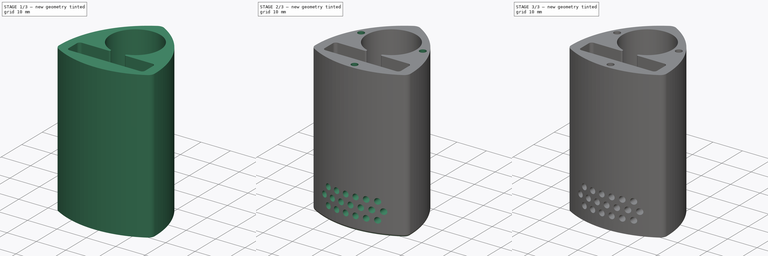
[diagram: build sequence overview — one tinted view per stage of 3, left to right]
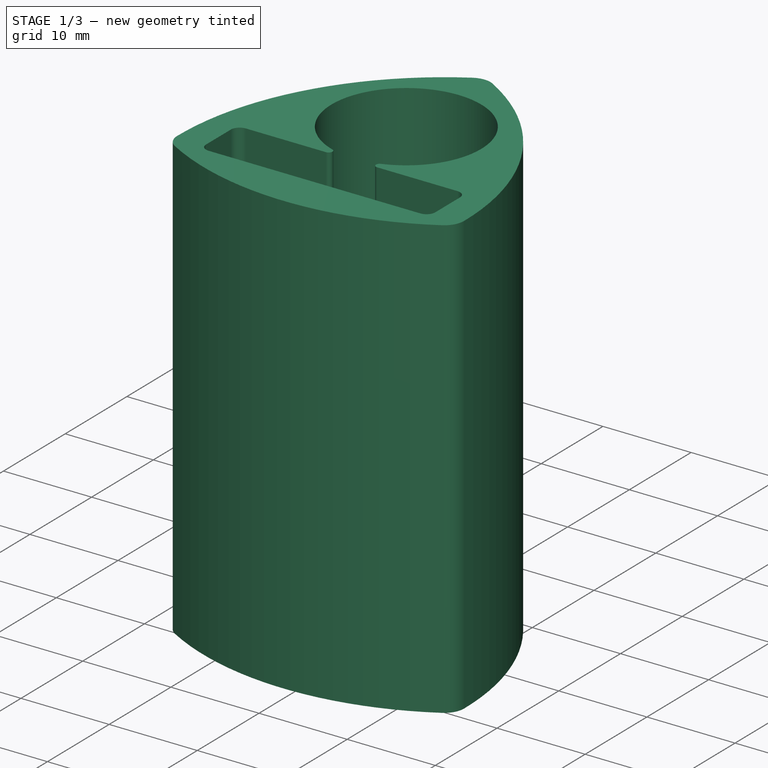
[diagram: stage 1 of 3 — iso view after this stage's code; geometry added in this stage tinted green]
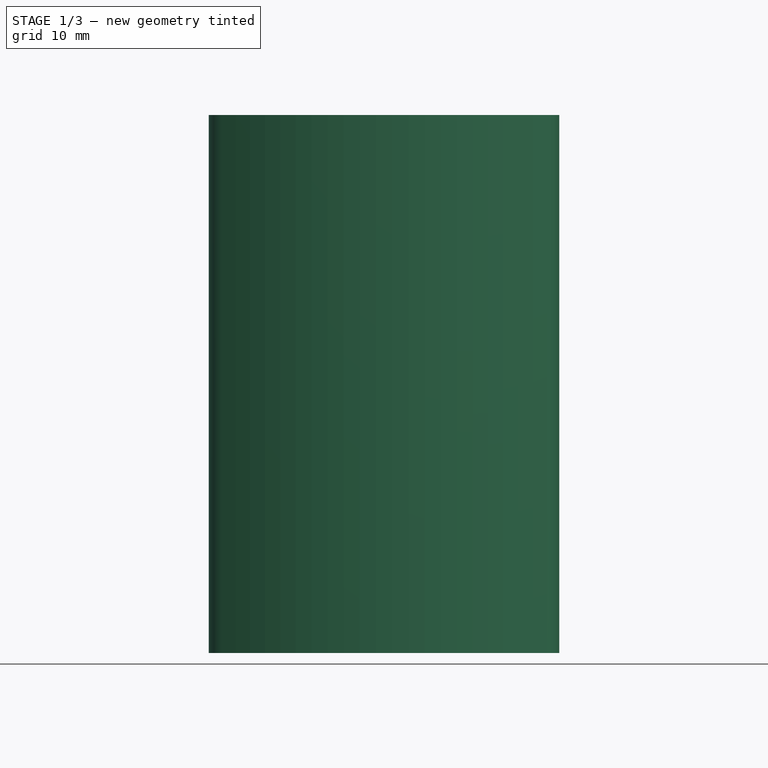
[diagram: stage 1 of 3 — front view after this stage's code; geometry added in this stage tinted green]
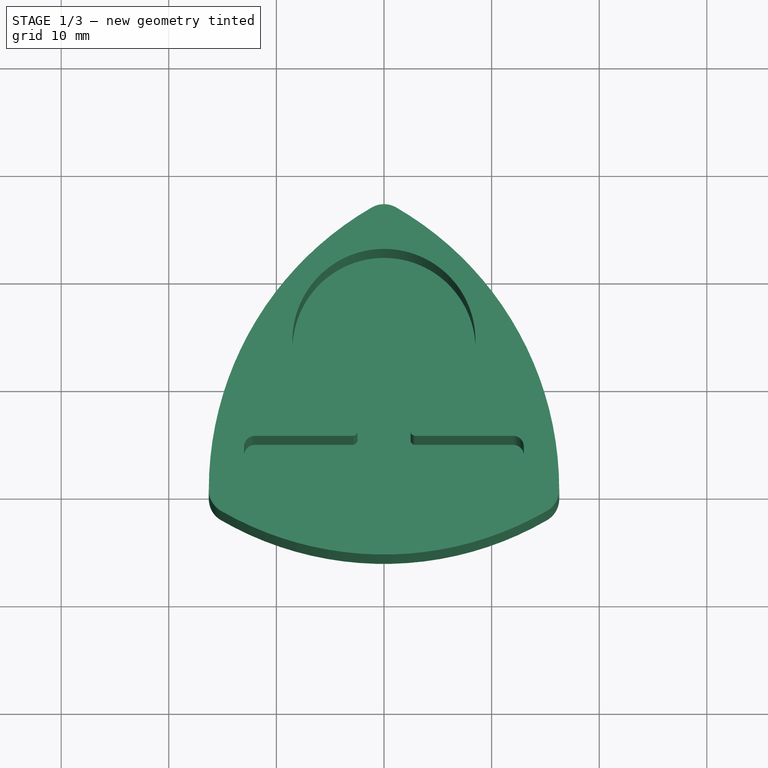
[diagram: stage 1 of 3 — top view after this stage's code; geometry added in this stage tinted green]
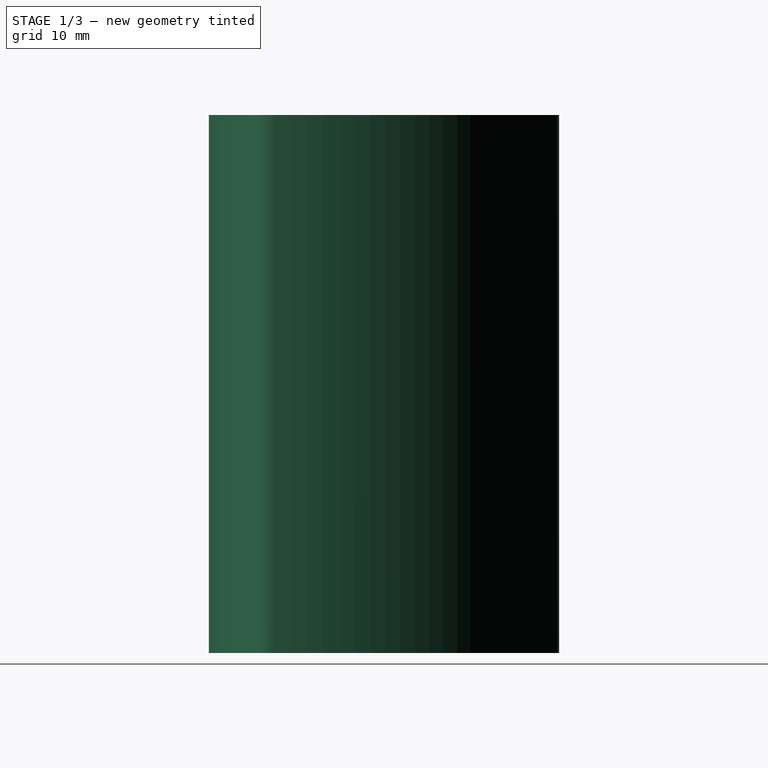
[diagram: stage 1 of 3 — right view after this stage's code; geometry added in this stage tinted green]
FCSTD DOCUMENT  (FreeCAD 1.0R39109 (Git))
Label: housing
License: All rights reserved
LicenseURL: https://en.wikipedia.org/wiki/All_rights_reserved
objects: Sketcher::SketchObject×6, PartDesign::Pocket×4, PartDesign::Pad×2, PartDesign::Body×2, PartDesign::Fillet×1
note: 35 computed .brp shape members not serialized (recipe doc carries the construction recipe); baked Part::Feature solids carry a one-line shape summary decoded from their .brp

FEATURE [Sketcher::SketchObject] Sketch002  label="Base form"
  ArcFitTolerance = 1e-06
  FullyConstrained = false
  MakeInternals = false
  MapMode = 5
  sketch-geometry (9):
    g0: ArcOfCircle CenterX=14 CenterY=0 CenterZ=0 NormalX=0 NormalY=0 NormalZ=1 AngleXU=0 Radius=30.2821 StartAngle=2.0944 EndAngle=3.14159
    g1: ArcOfCircle CenterX=5.3e-15 CenterY=24.2487 CenterZ=0 NormalX=0 NormalY=0 NormalZ=1 AngleXU=0 Radius=2.28206 StartAngle=1.0472 EndAngle=2.0944
    g2: ArcOfCircle CenterX=-14 CenterY=-1e-16 CenterZ=0 NormalX=0 NormalY=0 NormalZ=1 AngleXU=0 Radius=30.2821 StartAngle=0 EndAngle=1.0472
    g3: ArcOfCircle CenterX=14 CenterY=0 CenterZ=0 NormalX=0 NormalY=0 NormalZ=1 AngleXU=0 Radius=2.28206 StartAngle=5.23599 EndAngle=6.28319
    g4: ArcOfCircle CenterX=5.3e-15 CenterY=24.2487 CenterZ=0 NormalX=0 NormalY=0 NormalZ=1 AngleXU=0 Radius=30.2821 StartAngle=4.18879 EndAngle=5.23599
    g5: ArcOfCircle CenterX=-14 CenterY=1e-16 CenterZ=0 NormalX=0 NormalY=0 NormalZ=1 AngleXU=0 Radius=2.28206 StartAngle=3.14159 EndAngle=4.18879
    g6: LineSegment [constr] StartX=-14 StartY=-1e-16 StartZ=0 EndX=5.3e-15 EndY=24.2487 EndZ=0
    g7: LineSegment [constr] StartX=5.3e-15 StartY=24.2487 StartZ=0 EndX=14 EndY=0 EndZ=0
    g8: LineSegment [constr] StartX=14 StartY=0 StartZ=0 EndX=-14 EndY=-1e-16 EndZ=0
  constraints (21):
    c: Tangent(g1,g0) = -1.5708
    c: Tangent(g2,g1) = -1.5708
    c: Tangent(g3,g2) = -1.5708
    c: Tangent(g4,g3) = -1.5708
    c: Tangent(g5,g4) = -1.5708
    c: Tangent(g5,g0) = -1.5708
    c: Coincident(g0,g3)
    c: Coincident(g4,g1)
    c: Coincident(g6,g2)
    c: Coincident(g6,g1)
    c: Coincident(g7,g1)
    c: Coincident(g7,g0)
    c: Coincident(g8,g0)
    c: Coincident(g8,g2)
    c: Equal(g8,g7)
    c: Equal(g6,g7)
    c: PointOnObject(g-1,g8)
    c: PointOnObject(g1,g-2)
    c: DistanceX(g8,g8) = 28
    c: PointOnObject(g0,g-1)
    c: PointOnObject(g5,g-1)
FEATURE [PartDesign::Pad] Pad
  Direction = (0,0,1)
  Length = 50
  Length2 = 10
  Profile = -> Sketch002
  ReferenceAxis = -> Sketch002 [N_Axis]
  Refine = true
  Suppressed = false
  Type = 0
FEATURE [Sketcher::SketchObject] Sketch003  label="Pocket sketch"
  ArcFitTolerance = 1e-06
  AttachmentSupport = -> [Pad]
  FullyConstrained = false
  MakeInternals = false
  MapMode = 5
  Placement = pos=(0,0,50) rot=(0,0,1;0rad)
  sketch-geometry (22):
    g0: LineSegment StartX=-13 StartY=4 StartZ=0 EndX=-13 EndY=0 EndZ=0
    g1: LineSegment StartX=-12 StartY=-1 StartZ=0 EndX=12 EndY=-1 EndZ=0
    g2: LineSegment StartX=13 StartY=-2e-16 StartZ=0 EndX=13 EndY=4 EndZ=0
    g3: ArcOfCircle CenterX=-12 CenterY=4 CenterZ=0 NormalX=0 NormalY=0 NormalZ=1 AngleXU=0 Radius=1 StartAngle=1.5708 EndAngle=3.14159
    g4: ArcOfCircle CenterX=-12 CenterY=0 CenterZ=0 NormalX=0 NormalY=0 NormalZ=1 AngleXU=0 Radius=1 StartAngle=3.14159 EndAngle=4.71239
    g5: ArcOfCircle CenterX=12 CenterY=0 CenterZ=0 NormalX=0 NormalY=0 NormalZ=1 AngleXU=0 Radius=1 StartAngle=4.71239 EndAngle=6.28319
    g6: ArcOfCircle CenterX=12 CenterY=4 CenterZ=0 NormalX=0 NormalY=0 NormalZ=1 AngleXU=0 Radius=1 StartAngle=0 EndAngle=1.5708
    g7: GeomPoint [constr] X=-13 Y=5 Z=0
    g8: GeomPoint [constr] X=13 Y=-1 Z=0
    g9: LineSegment [constr] StartX=-13 StartY=0 StartZ=0 EndX=0 EndY=0 EndZ=0
    g10: LineSegment [constr] StartX=0 StartY=0 StartZ=0 EndX=13 EndY=-2e-16 EndZ=0
    g11: ArcOfCircle CenterX=0 CenterY=13.8745 CenterZ=0 NormalX=0 NormalY=0 NormalZ=1 AngleXU=0 Radius=8.5 StartAngle=5.04325 EndAngle=10.6647
    g12: LineSegment StartX=-12 StartY=5 StartZ=0 EndX=-2.9008 EndY=5 EndZ=0
    g13: LineSegment StartX=12 StartY=5 StartZ=0 EndX=2.9008 EndY=5 EndZ=0
    g14: ArcOfCircle CenterX=-2.9008 CenterY=5.42942 CenterZ=0 NormalX=0 NormalY=0 NormalZ=1 AngleXU=0 Radius=0.429423 StartAngle=4.71239 EndAngle=7.52312
    g15: ArcOfCircle CenterX=2.9008 CenterY=5.42942 CenterZ=0 NormalX=0 NormalY=0 NormalZ=1 AngleXU=0 Radius=0.429423 StartAngle=1.90166 EndAngle=4.71239
    g16: LineSegment [constr] StartX=-8.97601 StartY=-1 StartZ=0 EndX=-8.97601 EndY=5 EndZ=0
    g17: LineSegment [constr] StartX=-2.76129 StartY=5.83555 StartZ=0 EndX=0 EndY=5.83555 EndZ=0
    g18: LineSegment [constr] StartX=0 StartY=5.83555 StartZ=0 EndX=2.76129 EndY=5.83555 EndZ=0
    g19: LineSegment [constr] StartX=-2.9008 StartY=5 StartZ=0 EndX=0 EndY=5 EndZ=0
    g20: LineSegment [constr] StartX=0 StartY=5 StartZ=0 EndX=2.9008 EndY=5 EndZ=0
    g21: LineSegment [constr] StartX=0 StartY=13.8745 StartZ=0 EndX=7.74213 EndY=17.383 EndZ=0
  constraints (54):
    c: Tangent(g0,g3) = -1.5708
    c: Tangent(g0,g4) = -1.5708
    c: Tangent(g1,g4) = -1.5708
    c: Tangent(g1,g5) = -1.5708
    c: Tangent(g2,g5) = -1.5708
    c: Tangent(g2,g6) = -1.5708
    c: Vertical(g0)
    c: Vertical(g2)
    c: Horizontal(g1)
    c: Equal(g3,g4)
    c: Equal(g4,g5)
    c: Equal(g5,g6)
    c: PointOnObject(g7,g0)
    c: PointOnObject(g8,g1)
    c: PointOnObject(g8,g2)
    c: Distance(g0,g2) = 26
    c: Distance(g1,g3) = 6
    c: Radius(g4) = 1
    c: PointOnObject(g0,g-1)
    c: Coincident(g9,g0)
    c: Coincident(g9,g-1)
    c: Coincident(g10,g9)
    c: Coincident(g10,g2)
    c: Equal(g9,g10)
    c: PointOnObject(g11,g-2)
    c: Coincident(g12,g3)
    c: Horizontal(g12)
    c: Coincident(g13,g6)
    c: Horizontal(g13)
    c: Coincident(g14,g12)
    c: Coincident(g15,g13)
    c: Equal(g0,g2)
    c: Vertical(g16)
    c: PointOnObject(g16,g1)
    c: PointOnObject(g16,g12)
    c: Horizontal(g17)
    c: Coincident(g17,g11)
    c: PointOnObject(g17,g-2)
    c: Coincident(g18,g17)
    c: Coincident(g18,g11)
    c: Horizontal(g18)
    c: Horizontal(g19)
    c: Coincident(g19,g12)
    c: PointOnObject(g19,g-2)
    c: Coincident(g20,g19)
    c: Coincident(g20,g13)
    c: Horizontal(g20)
    c: Tangent(g20,g15)
    c: Equal(g19,g20)
    c: Tangent(g15,g11) = 1.5708
    c: Tangent(g14,g11) = 1.5708
    c: Coincident(g21,g11)
    c: PointOnObject(g21,g11)
    c: Distance(g21,g21) = 8.5
FEATURE [PartDesign::Pocket] Pocket
  BaseFeature = -> Pad
  Direction = (0,0,-1)
  Length = 48
  Length2 = 5
  Profile = -> Sketch003
  ReferenceAxis = -> Sketch003 [N_Axis]
  Refine = true
  Suppressed = false
  Type = 0
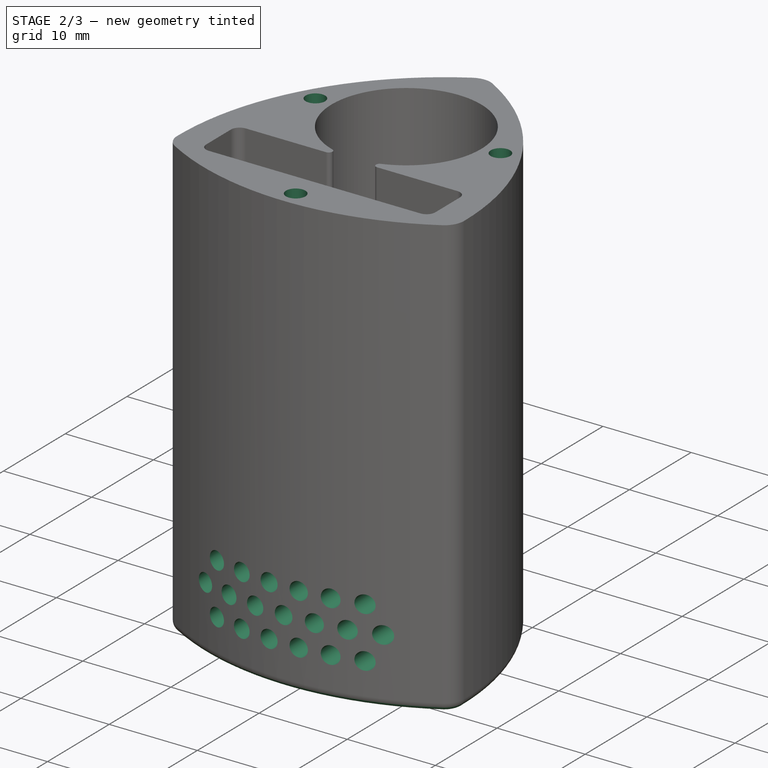
[diagram: stage 2 of 3 — iso view after this stage's code; geometry added in this stage tinted green]
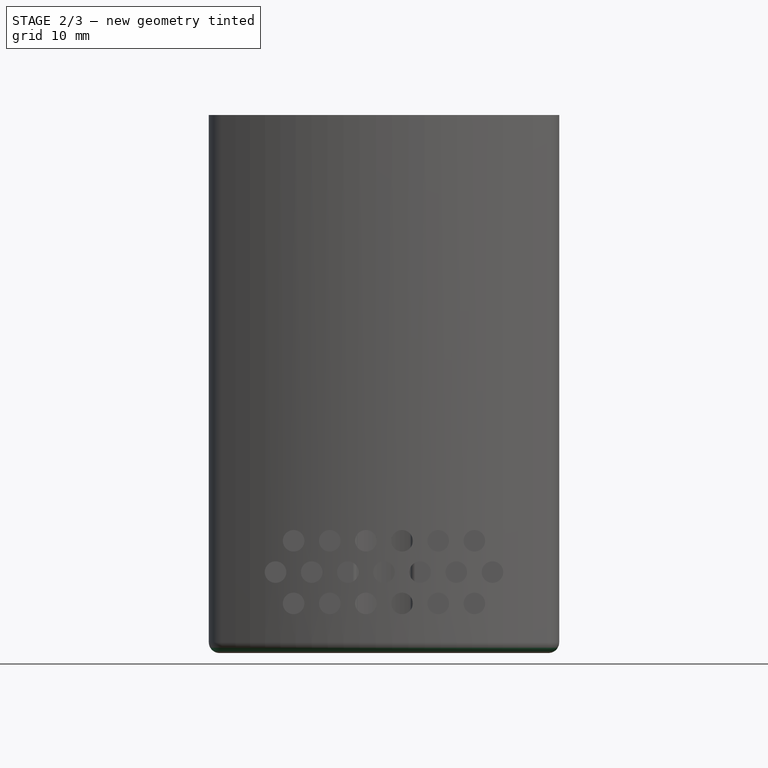
[diagram: stage 2 of 3 — front view after this stage's code; geometry added in this stage tinted green]
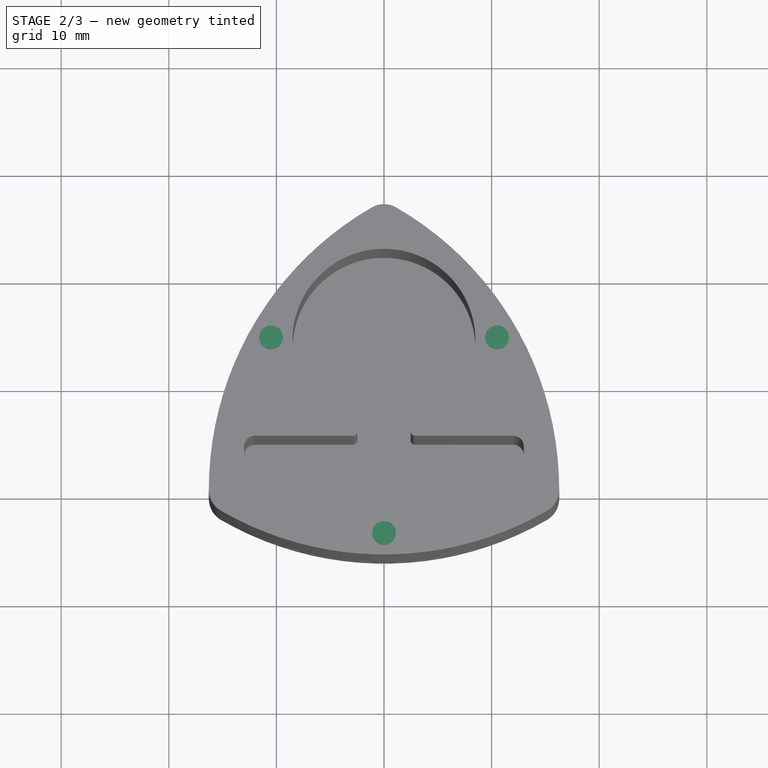
[diagram: stage 2 of 3 — top view after this stage's code; geometry added in this stage tinted green]
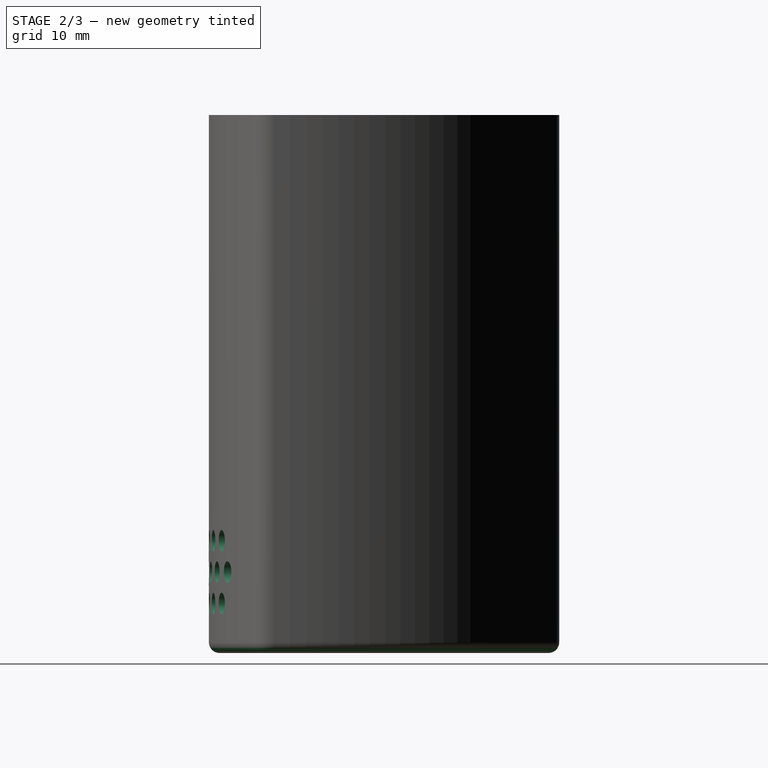
[diagram: stage 2 of 3 — right view after this stage's code; geometry added in this stage tinted green]
FEATURE [Sketcher::SketchObject] Sketch
  ArcFitTolerance = 1e-06
  AttachmentSupport = -> [XZ_Plane]
  FullyConstrained = false
  MakeInternals = false
  MapMode = 5
  Placement = pos=(0,0,0) rot=(1,0,0;1.5708rad)
  sketch-geometry (48):
    g0: LineSegment [constr] StartX=0 StartY=0 StartZ=0 EndX=-14 EndY=0 EndZ=0
    g1: LineSegment [constr] StartX=0 StartY=0 StartZ=0 EndX=14 EndY=0 EndZ=0
    g2: LineSegment [constr] StartX=-14 StartY=0 StartZ=0 EndX=-14 EndY=40 EndZ=0
    g3: LineSegment [constr] StartX=14 StartY=0 StartZ=0 EndX=14 EndY=40 EndZ=0
    g4: Circle CenterX=-8.40018 CenterY=10.4287 CenterZ=0 NormalX=0 NormalY=0 NormalZ=1 AngleXU=0 Radius=1
    g5: Circle CenterX=-5.04011 CenterY=10.4287 CenterZ=0 NormalX=0 NormalY=0 NormalZ=1 AngleXU=0 Radius=1
    g6: Circle CenterX=-1.68004 CenterY=10.4287 CenterZ=0 NormalX=0 NormalY=0 NormalZ=1 AngleXU=0 Radius=1
    g7: Circle CenterX=1.68004 CenterY=10.4287 CenterZ=0 NormalX=0 NormalY=0 NormalZ=1 AngleXU=0 Radius=1
    g8: Circle CenterX=5.04011 CenterY=10.4287 CenterZ=0 NormalX=0 NormalY=0 NormalZ=1 AngleXU=0 Radius=1
    g9: Circle CenterX=8.40018 CenterY=10.4287 CenterZ=0 NormalX=0 NormalY=0 NormalZ=1 AngleXU=0 Radius=1
    g10: LineSegment [constr] StartX=-8.40018 StartY=10.4287 StartZ=0 EndX=-5.04011 EndY=10.4287 EndZ=0
    g11: LineSegment [constr] StartX=-5.04011 StartY=10.4287 StartZ=0 EndX=-1.68004 EndY=10.4287 EndZ=0
    g12: LineSegment [constr] StartX=-1.68004 StartY=10.4287 StartZ=0 EndX=1.68004 EndY=10.4287 EndZ=0
    g13: LineSegment [constr] StartX=1.68004 StartY=10.4287 StartZ=0 EndX=5.04011 EndY=10.4287 EndZ=0
    g14: LineSegment [constr] StartX=5.04011 StartY=10.4287 StartZ=0 EndX=8.40018 EndY=10.4287 EndZ=0
    g15: LineSegment [constr] StartX=-1.68004 StartY=10.4287 StartZ=0 EndX=0 EndY=10.4287 EndZ=0
    g16: LineSegment [constr] StartX=0 StartY=10.4287 StartZ=0 EndX=1.68004 EndY=10.4287 EndZ=0
    g17: Circle CenterX=-8.40018 CenterY=4.6089 CenterZ=0 NormalX=0 NormalY=0 NormalZ=1 AngleXU=0 Radius=1
    g18: Circle CenterX=-5.04011 CenterY=4.6089 CenterZ=0 NormalX=0 NormalY=0 NormalZ=1 AngleXU=0 Radius=1
    g19: Circle CenterX=-1.68004 CenterY=4.6089 CenterZ=0 NormalX=0 NormalY=0 NormalZ=1 AngleXU=0 Radius=1
    g20: Circle CenterX=1.68004 CenterY=4.6089 CenterZ=0 NormalX=0 NormalY=0 NormalZ=1 AngleXU=0 Radius=1
    g21: Circle CenterX=5.04011 CenterY=4.6089 CenterZ=0 NormalX=0 NormalY=0 NormalZ=1 AngleXU=0 Radius=1
    g22: Circle CenterX=8.40018 CenterY=4.6089 CenterZ=0 NormalX=0 NormalY=0 NormalZ=1 AngleXU=0 Radius=1
    g23: LineSegment [constr] StartX=-8.40018 StartY=4.6089 StartZ=0 EndX=-5.04011 EndY=4.6089 EndZ=0
    g24: LineSegment [constr] StartX=-5.04011 StartY=4.6089 StartZ=0 EndX=-1.68004 EndY=4.6089 EndZ=0
    g25: LineSegment [constr] StartX=-1.68004 StartY=4.6089 StartZ=0 EndX=1.68004 EndY=4.6089 EndZ=0
    g26: LineSegment [constr] StartX=1.68004 StartY=4.6089 StartZ=0 EndX=5.04011 EndY=4.6089 EndZ=0
    g27: LineSegment [constr] StartX=5.04011 StartY=4.6089 StartZ=0 EndX=8.40018 EndY=4.6089 EndZ=0
    g28: LineSegment [constr] StartX=-1.68004 StartY=4.6089 StartZ=0 EndX=0 EndY=4.6089 EndZ=0
    g29: LineSegment [constr] StartX=0 StartY=4.6089 StartZ=0 EndX=1.68004 EndY=4.6089 EndZ=0
    g30: Circle CenterX=-10.0802 CenterY=7.5188 CenterZ=0 NormalX=0 NormalY=0 NormalZ=1 AngleXU=0 Radius=1
    g31: Circle CenterX=-6.72014 CenterY=7.5188 CenterZ=0 NormalX=0 NormalY=0 NormalZ=1 AngleXU=0 Radius=1
    g32: Circle CenterX=-3.36007 CenterY=7.5188 CenterZ=0 NormalX=0 NormalY=0 NormalZ=1 AngleXU=0 Radius=1
    g33: Circle CenterX=0 CenterY=7.5188 CenterZ=0 NormalX=0 NormalY=0 NormalZ=1 AngleXU=0 Radius=1
    g34: Circle CenterX=3.36007 CenterY=7.5188 CenterZ=0 NormalX=0 NormalY=0 NormalZ=1 AngleXU=0 Radius=1
    g35: Circle CenterX=6.72014 CenterY=7.5188 CenterZ=0 NormalX=0 NormalY=0 NormalZ=1 AngleXU=0 Radius=1
    g36: Circle CenterX=10.0802 CenterY=7.5188 CenterZ=0 NormalX=0 NormalY=0 NormalZ=1 AngleXU=0 Radius=1
    g37: LineSegment [constr] StartX=-10.0802 StartY=7.5188 StartZ=0 EndX=-6.72014 EndY=7.5188 EndZ=0
    g38: LineSegment [constr] StartX=-6.72014 StartY=7.5188 StartZ=0 EndX=-3.36007 EndY=7.5188 EndZ=0
    g39: LineSegment [constr] StartX=-3.36007 StartY=7.5188 StartZ=0 EndX=0 EndY=7.5188 EndZ=0
    g40: LineSegment [constr] StartX=0 StartY=7.5188 StartZ=0 EndX=3.36007 EndY=7.5188 EndZ=0
    g41: LineSegment [constr] StartX=3.36007 StartY=7.5188 StartZ=0 EndX=6.72014 EndY=7.5188 EndZ=0
    g42: LineSegment [constr] StartX=6.72014 StartY=7.5188 StartZ=0 EndX=10.0802 EndY=7.5188 EndZ=0
    g43: LineSegment [constr] StartX=-3.36007 StartY=7.5188 StartZ=0 EndX=-1.68004 EndY=10.4287 EndZ=0
    g44: LineSegment [constr] StartX=-1.68004 StartY=10.4287 StartZ=0 EndX=0 EndY=7.5188 EndZ=0
    g45: LineSegment [constr] StartX=0 StartY=7.5188 StartZ=0 EndX=-1.68004 EndY=4.6089 EndZ=0
    g46: LineSegment [constr] StartX=-1.68004 StartY=4.6089 StartZ=0 EndX=-3.36007 EndY=7.5188 EndZ=0
    g47: LineSegment [constr] StartX=-3.36007 StartY=7.5188 StartZ=0 EndX=0 EndY=7.5188 EndZ=0
  constraints (105):
    c: Distance(g0) = 14
    c: Coincident(g0,g-1)
    c: PointOnObject(g0,g-1)
    c: Distance(g1) = 14
    c: Coincident(g1,g0)
    c: PointOnObject(g1,g-1)
    c: Distance(g2) = 40
    c: Coincident(g2,g0)
    c: Vertical(g2)
    c: Distance(g3) = 40
    c: Coincident(g3,g1)
    c: Vertical(g3)
    c: Diameter(g4) = 2
    c: Equal(g4, g5-g9) x5
    c: Coincident(g10,g4)
    c: Coincident(g10,g5)
    c: Horizontal(g10)
    c: Coincident(g11,g5)
    c: Coincident(g11,g6)
    c: Horizontal(g11)
    c: Coincident(g12,g6)
    c: Coincident(g12,g7)
    c: Horizontal(g12)
    c: Coincident(g13,g7)
    c: Coincident(g13,g8)
    c: Horizontal(g13)
    c: Coincident(g14,g8)
    c: Coincident(g14,g9)
    c: Horizontal(g14)
    c: Equal(g10,g11)
    c: Equal(g11,g12)
    c: Equal(g12,g13)
    c: Equal(g13,g14)
    c: Coincident(g15,g6)
    c: Symmetric(g12,g12,g15)
    c: Symmetric(g12,g12,g16)
    c: Coincident(g16,g7)
    c: PointOnObject(g15,g-2)
    c: Diameter(g17) = 2
    c: Equal(g17, g18-g22) x5
    c: Coincident(g23,g17)
    c: Coincident(g23,g18)
    c: Horizontal(g23)
    c: Coincident(g24,g18)
    c: Coincident(g24,g19)
    c: Horizontal(g24)
    c: Coincident(g25,g19)
    c: Coincident(g25,g20)
    c: Horizontal(g25)
    c: Coincident(g26,g20)
    c: Coincident(g26,g21)
    c: Horizontal(g26)
    c: Coincident(g27,g21)
    c: Coincident(g27,g22)
    c: Horizontal(g27)
    c: Equal(g23,g24)
    c: Equal(g24,g25)
    c: Equal(g25,g26)
    c: Equal(g26,g27)
    c: Coincident(g28,g19)
    c: Symmetric(g25,g25,g28)
    c: Symmetric(g25,g25,g29)
    c: Coincident(g29,g20)
    c: PointOnObject(g28,g-2)
    c: Equal(g13,g26)
    c: Diameter(g30) = 2
    c: Equal(g30, g31-g36) x6
    c: Coincident(g37,g30)
    c: Coincident(g37,g31)
    c: Horizontal(g37)
    c: Coincident(g38,g31)
    c: Coincident(g38,g32)
    c: Horizontal(g38)
    c: Coincident(g39,g32)
    c: Coincident(g39,g33)
    c: Horizontal(g39)
    c: Coincident(g40,g33)
    c: Coincident(g40,g34)
    c: Horizontal(g40)
    c: Coincident(g41,g34)
    c: Coincident(g41,g35)
    c: Horizontal(g41)
    c: Coincident(g42,g35)
    c: Coincident(g42,g36)
    c: Horizontal(g42)
    c: Equal(g37,g38)
    c: Equal(g38,g39)
    c: Equal(g39,g40)
    c: Equal(g40,g41)
    c: Equal(g41,g42)
    c: PointOnObject(g33,g-2)
    c: Coincident(g43,g32)
    c: Coincident(g43,g6)
    c: Coincident(g44,g6)
    c: Coincident(g44,g33)
    c: Coincident(g45,g33)
    c: Coincident(g45,g19)
    c: Coincident(g46,g19)
    c: Coincident(g46,g32)
    c: Coincident(g47,g32)
    c: Coincident(g47,g33)
    c: Equal(g42,g43)
    c: Equal(g43,g44)
    c: Equal(g44,g45)
    c: Equal(g45,g46)
FEATURE [PartDesign::Pocket] Pocket001
  BaseFeature = -> Pocket
  Direction = (0,1,-2e-16)
  Length = 8
  Length2 = 5
  Profile = -> Sketch
  ReferenceAxis = -> Sketch [N_Axis]
  Refine = true
  Reversed = true
  Suppressed = false
  Type = 0
FEATURE [Sketcher::SketchObject] Sketch004
  ArcFitTolerance = 1e-06
  AttachmentSupport = -> [Pocket001]
  FullyConstrained = false
  MakeInternals = false
  MapMode = 5
  Placement = pos=(0,0,50) rot=(0,0,1;0rad)
  sketch-geometry (6):
    g0: LineSegment [constr] StartX=0 StartY=-4.05936 StartZ=0 EndX=-10.498 EndY=14.1236 EndZ=0
    g1: LineSegment [constr] StartX=-10.498 StartY=14.1236 StartZ=0 EndX=10.498 EndY=14.1236 EndZ=0
    g2: LineSegment [constr] StartX=10.498 StartY=14.1236 StartZ=0 EndX=0 EndY=-4.05936 EndZ=0
    g3: Circle CenterX=-10.498 CenterY=14.1236 CenterZ=0 NormalX=0 NormalY=0 NormalZ=1 AngleXU=0 Radius=1.1
    g4: Circle CenterX=0 CenterY=-4.05936 CenterZ=0 NormalX=0 NormalY=0 NormalZ=1 AngleXU=0 Radius=1.1
    g5: Circle CenterX=10.498 CenterY=14.1236 CenterZ=0 NormalX=0 NormalY=0 NormalZ=1 AngleXU=0 Radius=1.1
  constraints (13):
    c: PointOnObject(g0,g-2)
    c: Horizontal(g1)
    c: Coincident(g1,g0)
    c: Coincident(g2,g1)
    c: Coincident(g2,g0)
    c: Equal(g0,g1)
    c: Equal(g1,g2)
    c: Diameter(g3) = 2.2
    c: Coincident(g3,g0)
    c: Diameter(g4) = 2.2
    c: Coincident(g4,g0)
    c: Diameter(g5) = 2.2
    c: Coincident(g5,g1)
FEATURE [PartDesign::Pocket] Pocket002
  BaseFeature = -> Pocket001
  Direction = (0,0,-1)
  Length = 1.2
  Length2 = 5
  Profile = -> Sketch004
  ReferenceAxis = -> Sketch004 [N_Axis]
  Refine = true
  Suppressed = false
  Type = 0
FEATURE [PartDesign::Body] Body001  label="Lid"
  AllowCompound = false
  Group = -> [Sketch005,Pad001,Sketch006,Pocket003]
  Origin = -> Origin001
  Placement = pos=(50,0,0) rot=(0,0,1;0rad)
  Tip = -> Pocket003
FEATURE [PartDesign::Fillet] Fillet
  Base = -> Pocket002 [Face4]
  BaseFeature = -> Pocket002
  Radius = 1
  Refine = true
  SupportTransform = false
  Suppressed = false
  UseAllEdges = false
FEATURE [PartDesign::Body] Body
  AllowCompound = false
  Group = -> [Sketch002,Pad,Sketch003,Pocket,Sketch,Pocket001,Sketch004,Pocket002,Fillet]
  Origin = -> Origin
  Tip = -> Fillet
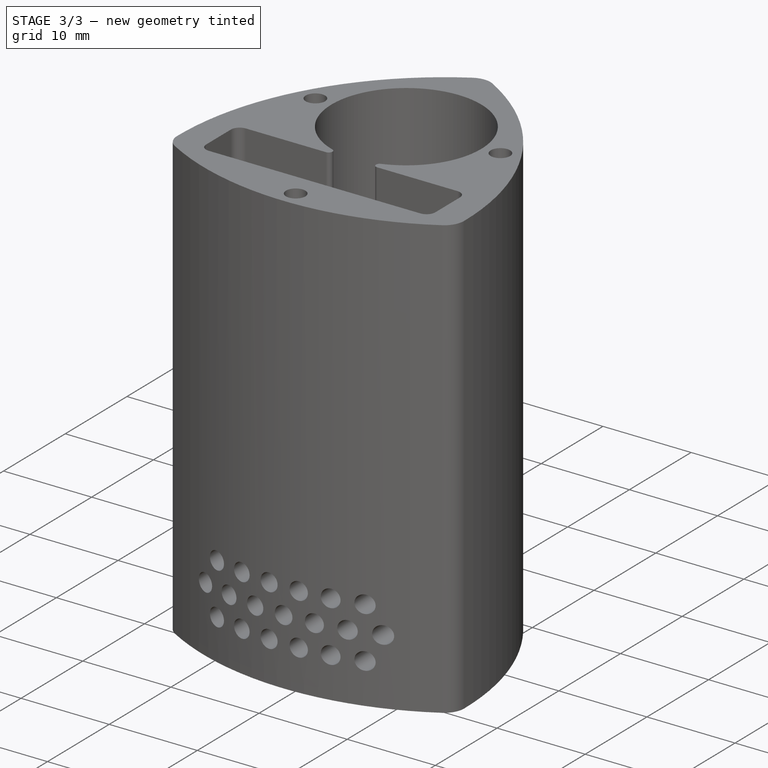
[diagram: stage 3 of 3 — iso view after this stage's code; geometry added in this stage tinted green]
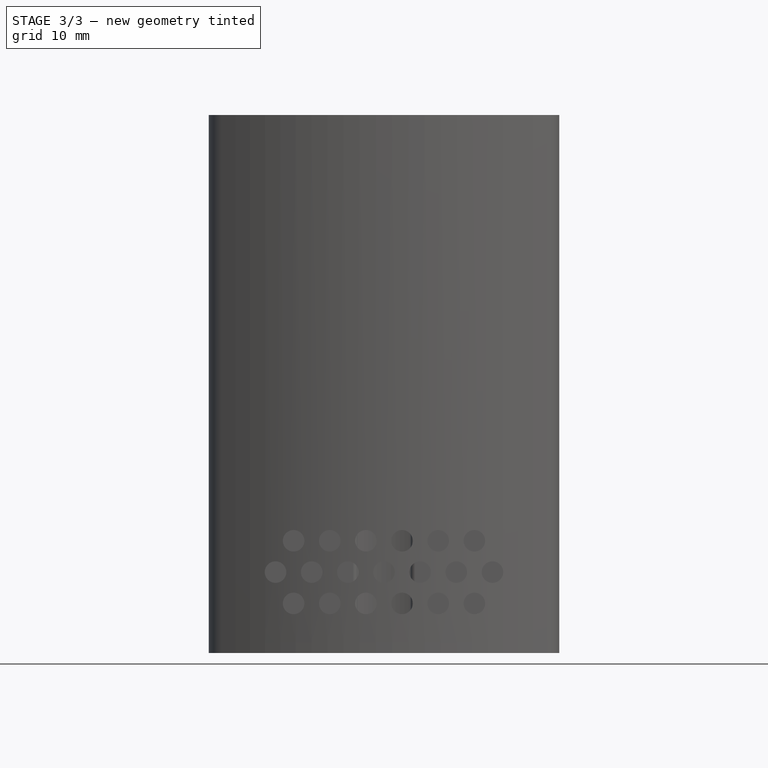
[diagram: stage 3 of 3 — front view after this stage's code; geometry added in this stage tinted green]
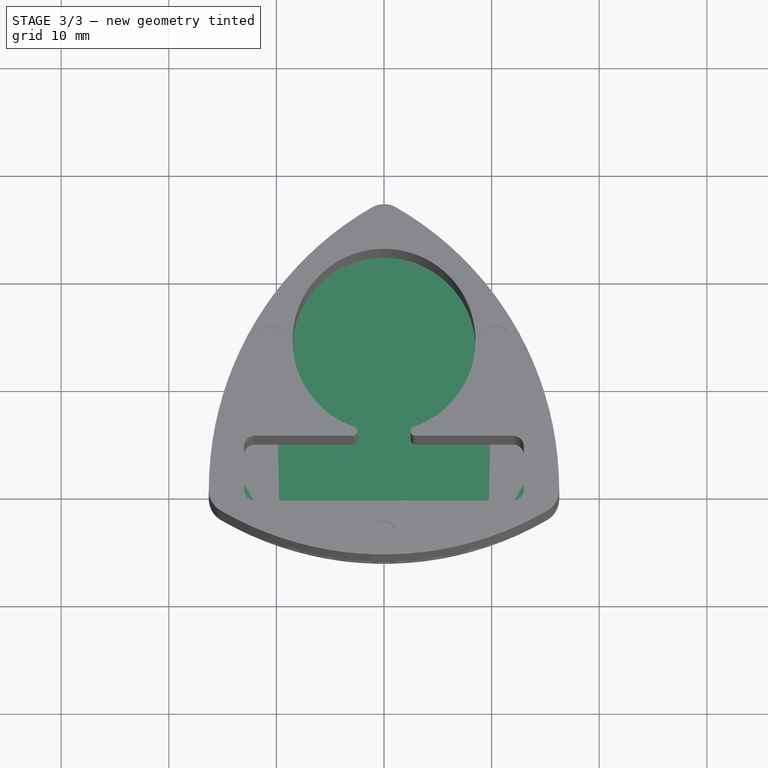
[diagram: stage 3 of 3 — top view after this stage's code; geometry added in this stage tinted green]
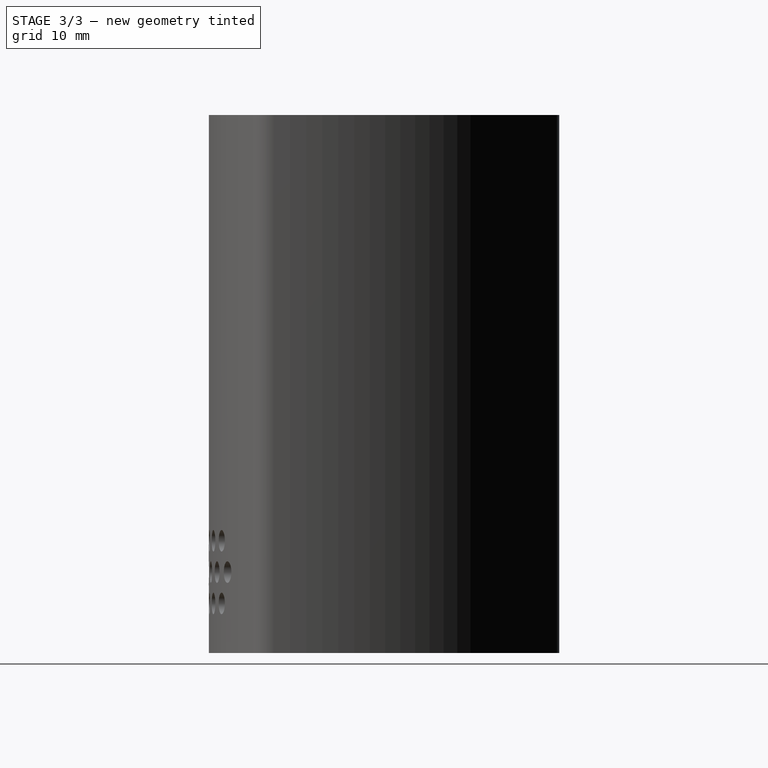
[diagram: stage 3 of 3 — right view after this stage's code; geometry added in this stage tinted green]
FEATURE [Sketcher::SketchObject] Sketch005  label="Base form001"
  ArcFitTolerance = 1e-06
  FullyConstrained = false
  MakeInternals = false
  MapMode = 5
  sketch-geometry (9):
    g0: ArcOfCircle CenterX=14 CenterY=0 CenterZ=0 NormalX=0 NormalY=0 NormalZ=1 AngleXU=0 Radius=30.2821 StartAngle=2.0944 EndAngle=3.14159
    g1: ArcOfCircle CenterX=5.3e-15 CenterY=24.2487 CenterZ=0 NormalX=0 NormalY=0 NormalZ=1 AngleXU=0 Radius=2.28206 StartAngle=1.0472 EndAngle=2.0944
    g2: ArcOfCircle CenterX=-14 CenterY=-1e-16 CenterZ=0 NormalX=0 NormalY=0 NormalZ=1 AngleXU=0 Radius=30.2821 StartAngle=0 EndAngle=1.0472
    g3: ArcOfCircle CenterX=14 CenterY=0 CenterZ=0 NormalX=0 NormalY=0 NormalZ=1 AngleXU=0 Radius=2.28206 StartAngle=5.23599 EndAngle=6.28319
    g4: ArcOfCircle CenterX=5.3e-15 CenterY=24.2487 CenterZ=0 NormalX=0 NormalY=0 NormalZ=1 AngleXU=0 Radius=30.2821 StartAngle=4.18879 EndAngle=5.23599
    g5: ArcOfCircle CenterX=-14 CenterY=1e-16 CenterZ=0 NormalX=0 NormalY=0 NormalZ=1 AngleXU=0 Radius=2.28206 StartAngle=3.14159 EndAngle=4.18879
    g6: LineSegment [constr] StartX=-14 StartY=-1e-16 StartZ=0 EndX=5.3e-15 EndY=24.2487 EndZ=0
    g7: LineSegment [constr] StartX=5.3e-15 StartY=24.2487 StartZ=0 EndX=14 EndY=0 EndZ=0
    g8: LineSegment [constr] StartX=14 StartY=0 StartZ=0 EndX=-14 EndY=-1e-16 EndZ=0
  constraints (21):
    c: Tangent(g1,g0) = -1.5708
    c: Tangent(g2,g1) = -1.5708
    c: Tangent(g3,g2) = -1.5708
    c: Tangent(g4,g3) = -1.5708
    c: Tangent(g5,g4) = -1.5708
    c: Tangent(g5,g0) = -1.5708
    c: Coincident(g0,g3)
    c: Coincident(g4,g1)
    c: Coincident(g6,g2)
    c: Coincident(g6,g1)
    c: Coincident(g7,g1)
    c: Coincident(g7,g0)
    c: Coincident(g8,g0)
    c: Coincident(g8,g2)
    c: Equal(g8,g7)
    c: Equal(g6,g7)
    c: PointOnObject(g-1,g8)
    c: PointOnObject(g1,g-2)
    c: DistanceX(g8,g8) = 28
    c: PointOnObject(g0,g-1)
    c: PointOnObject(g5,g-1)
FEATURE [PartDesign::Pad] Pad001
  Direction = (0,0,1)
  Length = 3
  Length2 = 10
  Profile = -> Sketch005
  ReferenceAxis = -> Sketch005 [N_Axis]
  Refine = true
  Suppressed = false
  Type = 0
FEATURE [Sketcher::SketchObject] Sketch006
  ArcFitTolerance = 1e-06
  AttachmentSupport = -> [Pad001]
  FullyConstrained = false
  MakeInternals = false
  MapMode = 5
  Placement = pos=(0,0,3) rot=(0,0,1;0rad)
  sketch-geometry (6):
    g0: LineSegment [constr] StartX=0 StartY=-4.05936 StartZ=0 EndX=-10.498 EndY=14.1236 EndZ=0
    g1: LineSegment [constr] StartX=-10.498 StartY=14.1236 StartZ=0 EndX=10.498 EndY=14.1236 EndZ=0
    g2: LineSegment [constr] StartX=10.498 StartY=14.1236 StartZ=0 EndX=0 EndY=-4.05936 EndZ=0
    g3: Circle CenterX=-10.498 CenterY=14.1236 CenterZ=0 NormalX=0 NormalY=0 NormalZ=1 AngleXU=0 Radius=1.1
    g4: Circle CenterX=0 CenterY=-4.05936 CenterZ=0 NormalX=0 NormalY=0 NormalZ=1 AngleXU=0 Radius=1.1
    g5: Circle CenterX=10.498 CenterY=14.1236 CenterZ=0 NormalX=0 NormalY=0 NormalZ=1 AngleXU=0 Radius=1.1
  constraints (13):
    c: PointOnObject(g0,g-2)
    c: Horizontal(g1)
    c: Coincident(g1,g0)
    c: Coincident(g2,g1)
    c: Coincident(g2,g0)
    c: Equal(g0,g1)
    c: Equal(g1,g2)
    c: Diameter(g3) = 2.2
    c: Coincident(g3,g0)
    c: Diameter(g4) = 2.2
    c: Coincident(g4,g0)
    c: Diameter(g5) = 2.2
    c: Coincident(g5,g1)
FEATURE [PartDesign::Pocket] Pocket003
  BaseFeature = -> Pad001
  Direction = (0,0,-1)
  Length = 1.2
  Length2 = 5
  Profile = -> Sketch006
  ReferenceAxis = -> Sketch006 [N_Axis]
  Refine = true
  Suppressed = false
  Type = 0
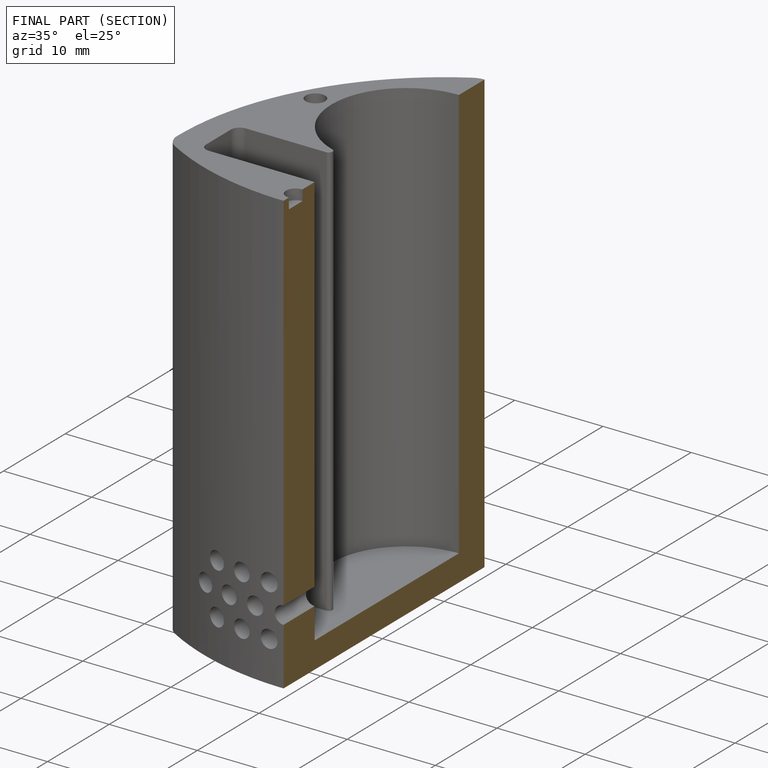
[diagram: finished part — half-section view (interior)]
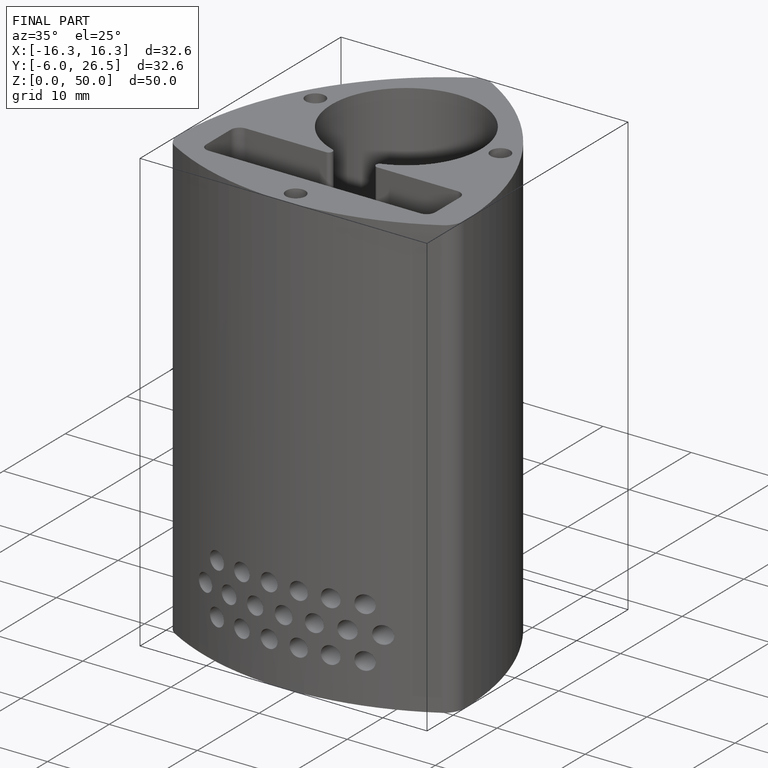
[diagram: finished part — iso view with bounding-box wireframe]
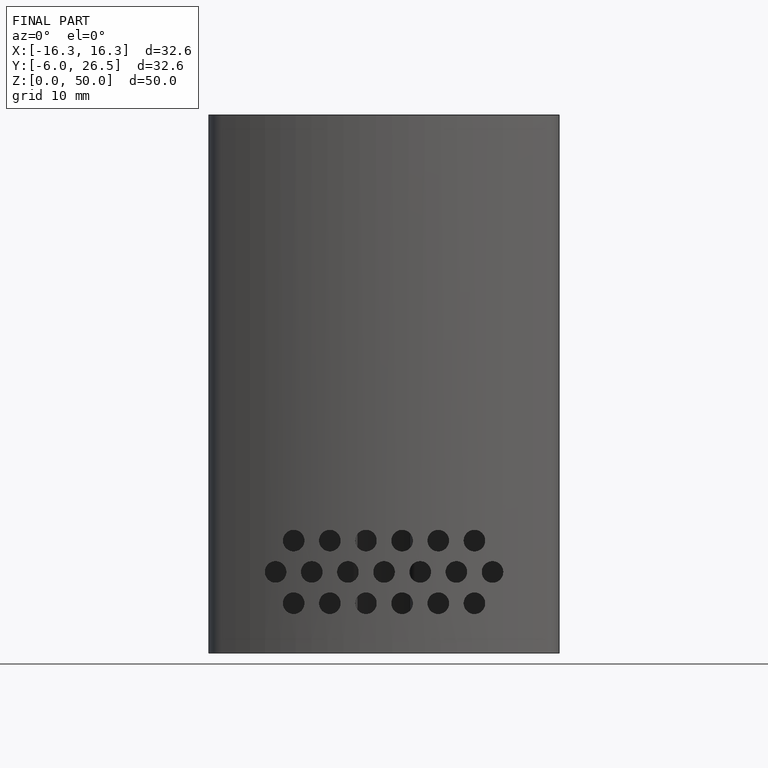
[diagram: finished part — front view with bounding-box wireframe]
